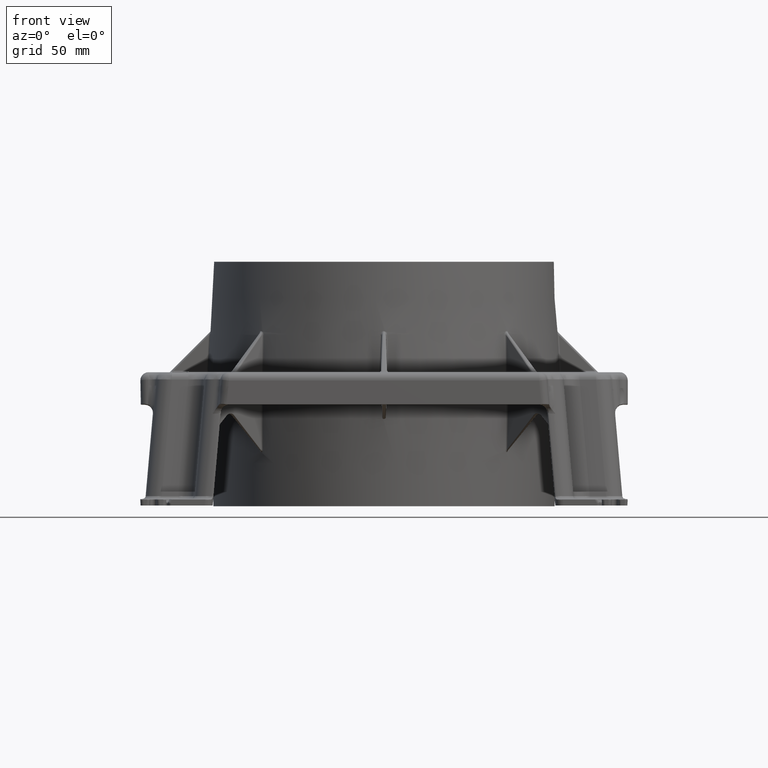
[diagram: clean part render]
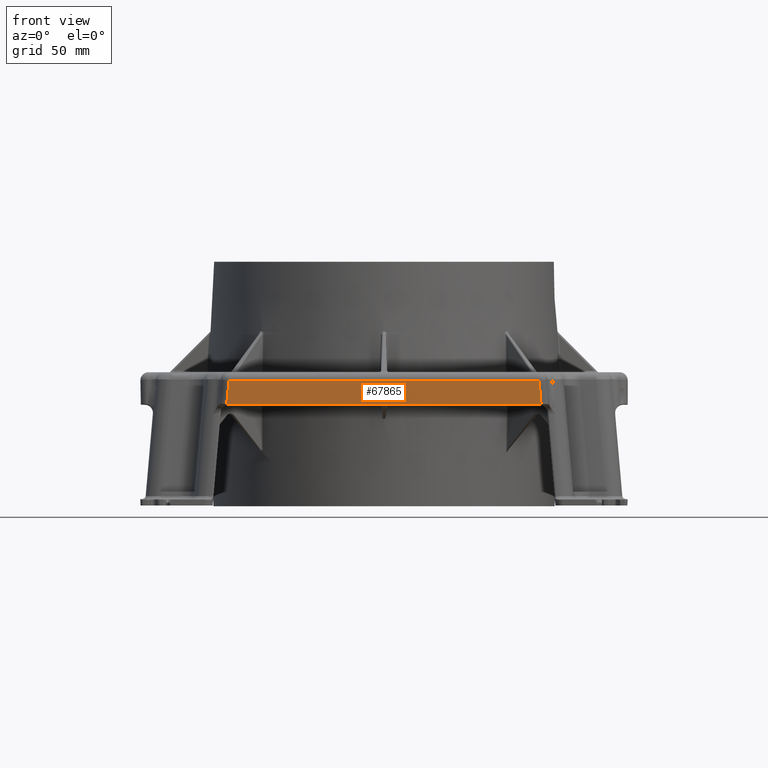
[diagram: same view with one face highlighted and labeled with its STEP entity id]
A machine part, front view. The second image highlights one B-rep face of the part: STEP entity #67865.
In plain terms, the highlighted planar face has unit normal (0, -0.9998, -0.0175).
Its self-contained STEP definition (entity closure, byte-faithful):
#64151=CARTESIAN_POINT('',(96.682637609597833,-149.65895940449479,-19.538202631025523));
#64152=VERTEX_POINT('',#64151);
#64185=CARTESIAN_POINT('',(-96.748578728060437,-149.65895940451466,-19.538202629886872));
#64186=VERTEX_POINT('',#64185);
#64196=CARTESIAN_POINT('',(96.682637609597833,-149.65895940449479,-19.53820263102552));
#64197=DIRECTION('',(-1.0,0.0,0.0));
#64198=VECTOR('',#64197,193.43121633765827);
#64199=LINE('',#64196,#64198);
#64200=EDGE_CURVE('',#64152,#64186,#64199,.T.);
#66065=CARTESIAN_POINT('',(95.418344129912896,-149.91120151092133,-5.08726203218642));
#66066=VERTEX_POINT('',#66065);
#66075=CARTESIAN_POINT('',(-95.41834412991291,-149.91120151092133,-5.087262032186418));
#66076=VERTEX_POINT('',#66075);
#66084=CARTESIAN_POINT('',(-95.41834412991291,-149.91120151092133,-5.087262032186418));
#66085=DIRECTION('',(1.0,0.0,0.0));
#66086=VECTOR('',#66085,190.83668825982579);
#66087=LINE('',#66084,#66086);
#66088=EDGE_CURVE('',#66076,#66066,#66087,.T.);
#67818=CARTESIAN_POINT('',(95.418344129912896,-149.91120151092133,-5.08726203218642));
#67819=DIRECTION('',(0.087142569315808,0.017386014874584,-0.996044125076706));
#67820=VECTOR('',#67819,14.508333752509442);
#67821=LINE('',#67818,#67820);
#67822=EDGE_CURVE('',#66066,#64152,#67821,.T.);
#67840=CARTESIAN_POINT('',(-150.0,-150.0,0.0));
#67841=DIRECTION('',(0.0,-0.999847695156391,-0.017452406437284));
#67842=DIRECTION('',(0.0,0.017452406437284,-0.999847695156391));
#67843=AXIS2_PLACEMENT_3D('',#67840,#67841,#67842);
#67844=PLANE('',#67843);
#67845=ORIENTED_EDGE('',*,*,#64200,.F.);
#67846=ORIENTED_EDGE('',*,*,#67822,.F.);
#67847=ORIENTED_EDGE('',*,*,#66088,.F.);
#67848=CARTESIAN_POINT('',(-95.725443574956898,-149.84993139275252,-8.597424751188195));
#67849=VERTEX_POINT('',#67848);
#67850=CARTESIAN_POINT('',(-95.725443574956898,-149.84993139275252,-8.597424751188193));
#67851=DIRECTION('',(0.087142569315809,-0.01738601487459,0.996044125076706));
#67852=VECTOR('',#67851,3.524103632187436);
#67853=LINE('',#67850,#67852);
#67854=EDGE_CURVE('',#67849,#66076,#67853,.T.);
#67855=ORIENTED_EDGE('',*,*,#67854,.F.);
#67856=CARTESIAN_POINT('',(-96.748577254120789,-149.6589594022382,-19.538202760305936));
#67857=CARTESIAN_POINT('',(-96.385583719058076,-149.72258033499264,-15.893361963888768));
#67858=CARTESIAN_POINT('',(-96.044677746040108,-149.78624024742021,-12.246288023497831));
#67859=CARTESIAN_POINT('',(-95.725443574956898,-149.84993139275255,-8.597424751188195));
#67860=B_SPLINE_CURVE_WITH_KNOTS('',3,(#67856,#67857,#67858,#67859),.UNSPECIFIED.,.F.,.U.,(4,4),(0.575666734451079,1.674673248453248),.UNSPECIFIED.);
#67861=EDGE_CURVE('',#64186,#67849,#67860,.T.);
#67862=ORIENTED_EDGE('',*,*,#67861,.F.);
#67863=EDGE_LOOP('',(#67845,#67846,#67847,#67855,#67862));
#67864=FACE_OUTER_BOUND('',#67863,.T.);
#67865=ADVANCED_FACE('',(#67864),#67844,.T.);